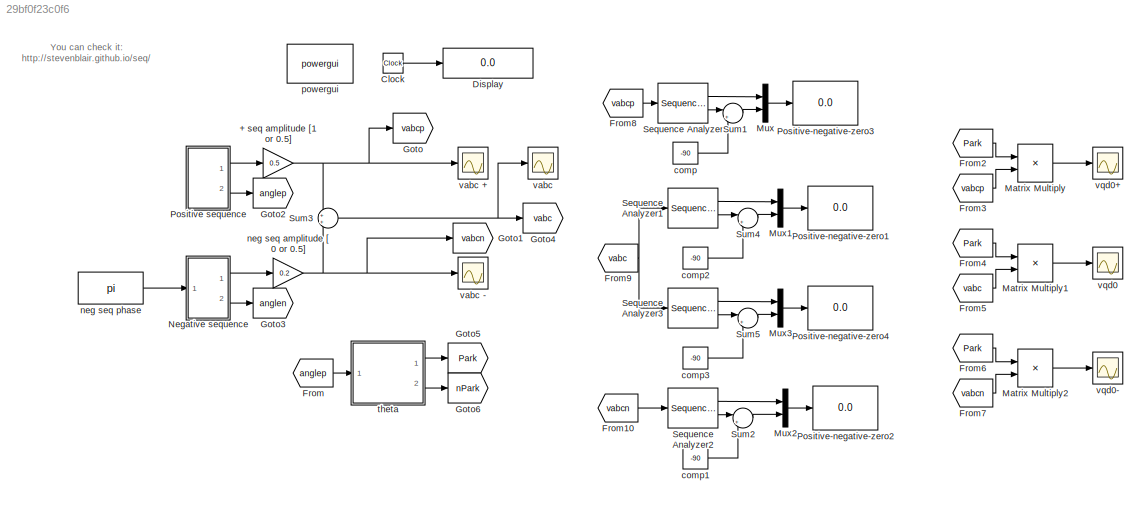
MODEL slx_29bf0f23c0f6
KIND model
CONFIG AbsTol = auto
CONFIG EnableMultiTasking = on
CONFIG FixedStep = auto
CONFIG MaxStep = 1e-4
CONFIG MinStep = auto
CONFIG RelTol = 1e-4
CONFIG SampleTimeConstraint = Unconstrained
CONFIG SolverName = ode45
CONFIG StartTime = 0.0
CONFIG StopTime = 100
BLOCK [Gain] + seq amplitude [1 or 0.5]
  Gain = 0.5
  NameLocation = top
BLOCK [Clock] Clock
BLOCK [Display] Display
  Decimation = 1
  Ports = [1]
BLOCK [From] From
  GotoTag = anglep
BLOCK [From] From10
  GotoTag = vabcn
BLOCK [From] From2
  GotoTag = Park
BLOCK [From] From3
  GotoTag = vabcp
BLOCK [From] From4
  GotoTag = Park
BLOCK [From] From5
  GotoTag = vabc
BLOCK [From] From6
  GotoTag = Park
BLOCK [From] From7
  GotoTag = vabcn
BLOCK [From] From8
  GotoTag = vabcp
BLOCK [From] From9
  GotoTag = vabc
BLOCK [Goto] Goto
  GotoTag = vabcp
BLOCK [Goto] Goto1
  GotoTag = vabcn
BLOCK [Goto] Goto2
  GotoTag = anglep
BLOCK [Goto] Goto3
  GotoTag = anglen
BLOCK [Goto] Goto4
  GotoTag = vabc
BLOCK [Goto] Goto5
  GotoTag = Park
BLOCK [Goto] Goto6
  GotoTag = nPark
BLOCK [Product] Matrix Multiply
  Multiplication = Matrix(*)
  Ports = [2, 1]
BLOCK [Product] Matrix Multiply1
  Multiplication = Matrix(*)
  Ports = [2, 1]
BLOCK [Product] Matrix Multiply2
  Multiplication = Matrix(*)
  Ports = [2, 1]
BLOCK [Mux] Mux
  DisplayOption = bar
  Inputs = 2
  Ports = [2, 1]
BLOCK [Mux] Mux1
  DisplayOption = bar
  Inputs = 2
  Ports = [2, 1]
BLOCK [Mux] Mux2
  DisplayOption = bar
  Inputs = 2
  Ports = [2, 1]
BLOCK [Mux] Mux3
  DisplayOption = bar
  Inputs = 2
  Ports = [2, 1]
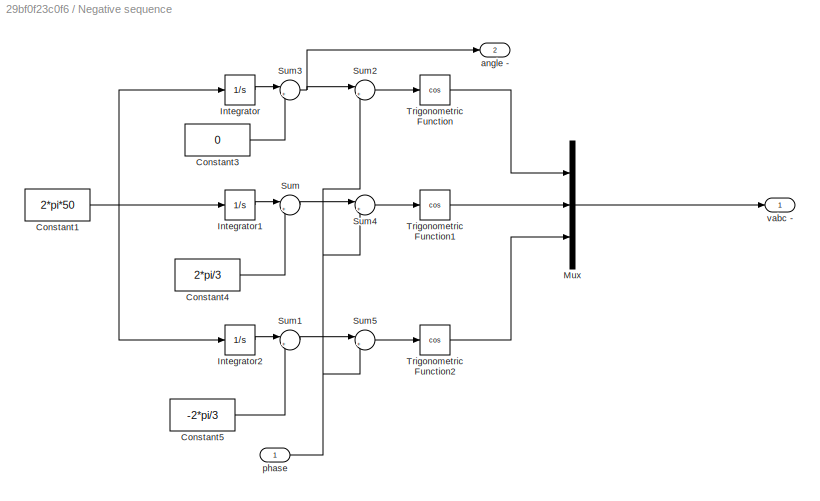
BLOCK [SubSystem] Negative sequence
  Ports = [1, 2]
  RequestExecContextInheritance = off
BLOCK [Constant] Negative sequence/Constant1
  Value = 2*pi*50
BLOCK [Constant] Negative sequence/Constant3
  Value = 0
BLOCK [Constant] Negative sequence/Constant4
  Value = 2*pi/3
BLOCK [Constant] Negative sequence/Constant5
  Value = -2*pi/3
BLOCK [Integrator] Negative sequence/Integrator
  Ports = [1, 1]
BLOCK [Integrator] Negative sequence/Integrator1
  Ports = [1, 1]
BLOCK [Integrator] Negative sequence/Integrator2
  Ports = [1, 1]
BLOCK [Mux] Negative sequence/Mux
  DisplayOption = bar
  Inputs = 3
  Ports = [3, 1]
BLOCK [Sum] Negative sequence/Sum
  Inputs = |++
  Ports = [2, 1]
BLOCK [Sum] Negative sequence/Sum1
  Inputs = |++
  Ports = [2, 1]
BLOCK [Sum] Negative sequence/Sum2
  Inputs = |++
  Ports = [2, 1]
BLOCK [Sum] Negative sequence/Sum3
  Inputs = |++
  Ports = [2, 1]
BLOCK [Sum] Negative sequence/Sum4
  Inputs = |++
  Ports = [2, 1]
BLOCK [Sum] Negative sequence/Sum5
  Inputs = |++
  Ports = [2, 1]
BLOCK [Trigonometry] Negative sequence/Trigonometric Function
  Operator = cos
  Ports = [1, 1]
BLOCK [Trigonometry] Negative sequence/Trigonometric Function1
  Operator = cos
  Ports = [1, 1]
BLOCK [Trigonometry] Negative sequence/Trigonometric Function2
  Operator = cos
  Ports = [1, 1]
BLOCK [Outport] Negative sequence/angle -
  Port = 2
BLOCK [Inport] Negative sequence/phase
BLOCK [Outport] Negative sequence/vabc -
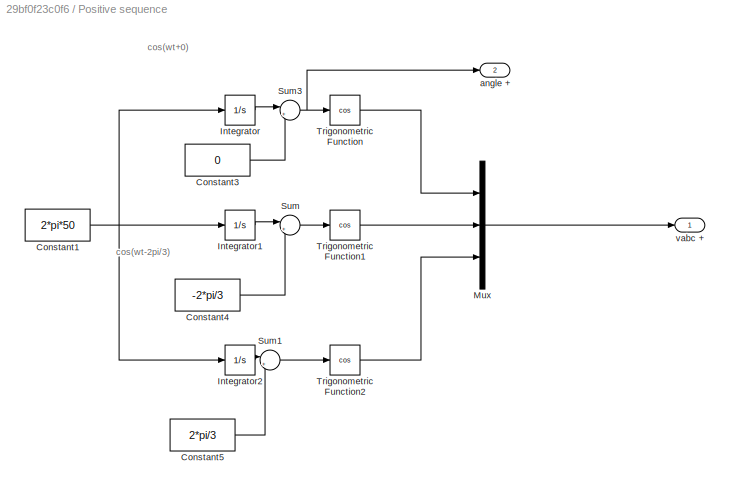
BLOCK [SubSystem] Positive sequence
  Ports = [0, 2]
  RequestExecContextInheritance = off
BLOCK [Constant] Positive sequence/Constant1
  Value = 2*pi*50
BLOCK [Constant] Positive sequence/Constant3
  Value = 0
BLOCK [Constant] Positive sequence/Constant4
  Value = -2*pi/3
BLOCK [Constant] Positive sequence/Constant5
  Value = 2*pi/3
BLOCK [Integrator] Positive sequence/Integrator
  Ports = [1, 1]
BLOCK [Integrator] Positive sequence/Integrator1
  Ports = [1, 1]
BLOCK [Integrator] Positive sequence/Integrator2
  Ports = [1, 1]
BLOCK [Mux] Positive sequence/Mux
  DisplayOption = bar
  Inputs = 3
  Ports = [3, 1]
BLOCK [Sum] Positive sequence/Sum
  Inputs = |++
  Ports = [2, 1]
BLOCK [Sum] Positive sequence/Sum1
  Inputs = |++
  Ports = [2, 1]
BLOCK [Sum] Positive sequence/Sum3
  Inputs = |++
  Ports = [2, 1]
BLOCK [Trigonometry] Positive sequence/Trigonometric Function
  Operator = cos
  Ports = [1, 1]
BLOCK [Trigonometry] Positive sequence/Trigonometric Function1
  Operator = cos
  Ports = [1, 1]
BLOCK [Trigonometry] Positive sequence/Trigonometric Function2
  Operator = cos
  Ports = [1, 1]
BLOCK [Outport] Positive sequence/angle +
  Port = 2
BLOCK [Outport] Positive sequence/vabc +
BLOCK [Display] Positive-negative-zero1
  Decimation = 1
  Ports = [1]
BLOCK [Display] Positive-negative-zero2
  Decimation = 1
  Ports = [1]
BLOCK [Display] Positive-negative-zero3
  Decimation = 1
  Ports = [1]
BLOCK [Display] Positive-negative-zero4
  Decimation = 1
  Ports = [1]
BLOCK [Reference] Sequence Analyzer  REF=powerlib_meascontrol/Measurements/Sequence Analyzer
  Ports = [1, 2]
  SourceBlock = powerlib_meascontrol/Measurements/Sequence Analyzer
  SourceProductBaseCode = PS
  SourceType = Sequence Analyzer
BLOCK [Reference] Sequence Analyzer1  REF=powerlib_meascontrol/Measurements/Sequence Analyzer
  Ports = [1, 2]
  SourceBlock = powerlib_meascontrol/Measurements/Sequence Analyzer
  SourceProductBaseCode = PS
  SourceType = Sequence Analyzer
BLOCK [Reference] Sequence Analyzer2  REF=powerlib_meascontrol/Measurements/Sequence Analyzer
  Ports = [1, 2]
  SourceBlock = powerlib_meascontrol/Measurements/Sequence Analyzer
  SourceProductBaseCode = PS
  SourceType = Sequence Analyzer
BLOCK [Reference] Sequence Analyzer3  REF=powerlib_meascontrol/Measurements/Sequence Analyzer
  Ports = [1, 2]
  SourceBlock = powerlib_meascontrol/Measurements/Sequence Analyzer
  SourceProductBaseCode = PS
  SourceType = Sequence Analyzer
BLOCK [Sum] Sum1
  Inputs = |++
  Ports = [2, 1]
BLOCK [Sum] Sum2
  Inputs = |++
  Ports = [2, 1]
BLOCK [Sum] Sum3
  Ports = [2, 1]
BLOCK [Sum] Sum4
  Inputs = |++
  Ports = [2, 1]
BLOCK [Sum] Sum5
  Inputs = |++
  Ports = [2, 1]
BLOCK [Constant] comp
  Value = -90
BLOCK [Constant] comp1
  Value = -90
BLOCK [Constant] comp2
  Value = -90
BLOCK [Constant] comp3
  Value = -90
BLOCK [Gain] neg seq amplitude [ 0 or 0.5]
  Gain = 0.2
  NameLocation = top
BLOCK [Constant] neg seq phase
  Value = pi
BLOCK [Reference] powergui  REF=powerlib/powergui
  Ports = []
  Priority = 1
  SourceBlock = powerlib/powergui
  SourceProductBaseCode = PS
  SourceType = PSB option menu block
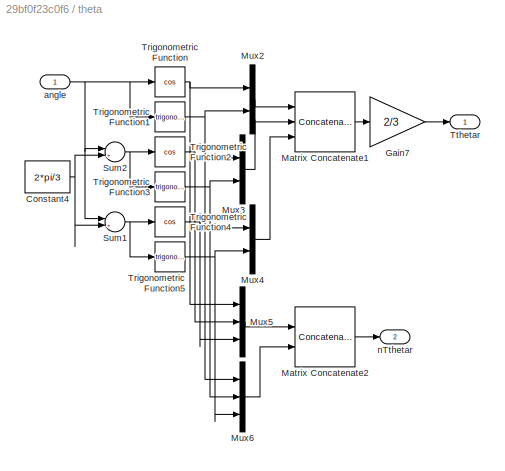
BLOCK [SubSystem] theta
  Ports = [1, 2]
  RequestExecContextInheritance = off
BLOCK [Constant] theta/Constant4
  SampleTime = 0
  Value = 2*pi/3
BLOCK [Gain] theta/Gain7
  Gain = 2/3
BLOCK [Concatenate] theta/Matrix Concatenate1
  ConcatenateDimension = 2
  Mode = Multidimensional array
  NumInputs = 3
  Ports = [3, 1]
BLOCK [Concatenate] theta/Matrix Concatenate2
  ConcatenateDimension = 2
  Mode = Multidimensional array
  Ports = [2, 1]
BLOCK [Mux] theta/Mux2
  DisplayOption = bar
  Inputs = 2
  Ports = [2, 1]
BLOCK [Mux] theta/Mux3
  DisplayOption = bar
  Inputs = 2
  Ports = [2, 1]
BLOCK [Mux] theta/Mux4
  DisplayOption = bar
  Inputs = 2
  Ports = [2, 1]
BLOCK [Mux] theta/Mux5
  DisplayOption = bar
  Inputs = 3
  Ports = [3, 1]
BLOCK [Mux] theta/Mux6
  DisplayOption = bar
  Inputs = 3
  Ports = [3, 1]
BLOCK [Sum] theta/Sum1
  Inputs = |++
  Ports = [2, 1]
BLOCK [Sum] theta/Sum2
  Inputs = |+-
  Ports = [2, 1]
BLOCK [Trigonometry] theta/Trigonometric Function
  Operator = cos
  Ports = [1, 1]
BLOCK [Trigonometry] theta/Trigonometric Function1
  Ports = [1, 1]
BLOCK [Trigonometry] theta/Trigonometric Function2
  Operator = cos
  Ports = [1, 1]
BLOCK [Trigonometry] theta/Trigonometric Function3
  Ports = [1, 1]
BLOCK [Trigonometry] theta/Trigonometric Function4
  Operator = cos
  Ports = [1, 1]
BLOCK [Trigonometry] theta/Trigonometric Function5
  Ports = [1, 1]
BLOCK [Outport] theta/Tthetar
BLOCK [Inport] theta/angle
BLOCK [Outport] theta/nTthetar
  Port = 2
BLOCK [Scope] vabc
  Floating = off
  NumInputPorts = 1
  Ports = [1]
  ScopeSpecificationString = Simulink.scopes.TimeScopeBlockCfg('CurrentConfiguration', extmgr.ConfigurationSet(extmgr.Configuration('Core','General UI',true),extmgr.Configuration('Core','Source UI',true),extmgr.Configuration('Sources','WiredSimulink',true,'DataLoggingSaveFormat','StructureWithTime','DataLoggingDecimation','1','DataLoggingDecimateData',true,'DataLoggingVariableName','ScopeData1'),extmgr.Configuration('Visuals'...<+1714ch>
BLOCK [Scope] vabc +
  Floating = off
  NumInputPorts = 1
  Ports = [1]
  ScopeSpecificationString = Simulink.scopes.TimeScopeBlockCfg('CurrentConfiguration', extmgr.ConfigurationSet(extmgr.Configuration('Core','General UI',true),extmgr.Configuration('Core','Source UI',true),extmgr.Configuration('Sources','WiredSimulink',true,'DataLoggingSaveFormat','StructureWithTime','DataLoggingDecimation','1','DataLoggingDecimateData',true),extmgr.Configuration('Visuals','Time Domain',true,'SerializedDisplays...<+1741ch>
BLOCK [Scope] vabc -
  Floating = off
  NumInputPorts = 1
  Ports = [1]
  ScopeSpecificationString = Simulink.scopes.TimeScopeBlockCfg('CurrentConfiguration', extmgr.ConfigurationSet(extmgr.Configuration('Core','General UI',true),extmgr.Configuration('Core','Source UI',true),extmgr.Configuration('Sources','WiredSimulink',true,'DataLoggingSaveFormat','StructureWithTime','DataLoggingDecimation','1','DataLoggingDecimateData',true,'DataLoggingVariableName','ScopeData2'),extmgr.Configuration('Visuals'...<+1808ch>
BLOCK [Scope] vqd0
  Floating = off
  NumInputPorts = 1
  Ports = [1]
  ScopeSpecificationString = Simulink.scopes.TimeScopeBlockCfg('CurrentConfiguration', extmgr.ConfigurationSet(extmgr.Configuration('Core','General UI',true),extmgr.Configuration('Core','Source UI',true),extmgr.Configuration('Sources','WiredSimulink',true,'DataLoggingSaveFormat','StructureWithTime','DataLoggingDecimation','1','DataLoggingDecimateData',true,'DataLoggingVariableName','ScopeData5'),extmgr.Configuration('Visuals'...<+2107ch>
BLOCK [Scope] vqd0+
  Floating = off
  NumInputPorts = 1
  Ports = [1]
  ScopeSpecificationString = Simulink.scopes.TimeScopeBlockCfg('CurrentConfiguration', extmgr.ConfigurationSet(extmgr.Configuration('Core','General UI',true),extmgr.Configuration('Core','Source UI',true),extmgr.Configuration('Sources','WiredSimulink',true,'DataLoggingSaveFormat','StructureWithTime','DataLoggingDecimation','1','DataLoggingDecimateData',true,'DataLoggingVariableName','ScopeData4'),extmgr.Configuration('Visuals'...<+1656ch>
BLOCK [Scope] vqd0-
  Floating = off
  NumInputPorts = 1
  Ports = [1]
  ScopeSpecificationString = Simulink.scopes.TimeScopeBlockCfg('CurrentConfiguration', extmgr.ConfigurationSet(extmgr.Configuration('Core','General UI',true),extmgr.Configuration('Core','Source UI',true),extmgr.Configuration('Sources','WiredSimulink',true,'DataLoggingSaveFormat','StructureWithTime','DataLoggingDecimation','1','DataLoggingDecimateData',true,'DataLoggingVariableName','ScopeData6'),extmgr.Configuration('Visuals'...<+1747ch>
ANNOTATION (root): You can check it: http://stevenblair.github.io/seq/
ANNOTATION Positive sequence: cos(wt+0)
ANNOTATION Positive sequence: cos(wt-2pi/3)
NET + seq amplitude [1 or 0.5]:1 -> Goto:1, Sum3:1, vabc +:1
LINE Clock:1 -> Display:1
LINE From10:1 -> Sequence Analyzer2:1
LINE From2:1 -> Matrix Multiply:1
LINE From3:1 -> Matrix Multiply:2
LINE From4:1 -> Matrix Multiply1:1
LINE From5:1 -> Matrix Multiply1:2
LINE From6:1 -> Matrix Multiply2:1
LINE From7:1 -> Matrix Multiply2:2
LINE From8:1 -> Sequence Analyzer:1
NET From9:1 -> Sequence Analyzer1:1, Sequence Analyzer3:1
LINE From:1 -> theta:1
LINE Matrix Multiply1:1 -> vqd0:1
LINE Matrix Multiply2:1 -> vqd0-:1
LINE Matrix Multiply:1 -> vqd0+:1
LINE Mux1:1 -> Positive-negative-zero1:1
LINE Mux2:1 -> Positive-negative-zero2:1
LINE Mux3:1 -> Positive-negative-zero4:1
LINE Mux:1 -> Positive-negative-zero3:1
NET Negative sequence/Constant1:1 -> Negative sequence/Integrator1:1, Negative sequence/Integrator2:1, Negative sequence/Integrator:1
LINE Negative sequence/Constant3:1 -> Negative sequence/Sum3:2
LINE Negative sequence/Constant4:1 -> Negative sequence/Sum:2
LINE Negative sequence/Constant5:1 -> Negative sequence/Sum1:2
LINE Negative sequence/Integrator1:1 -> Negative sequence/Sum:1
LINE Negative sequence/Integrator2:1 -> Negative sequence/Sum1:1
LINE Negative sequence/Integrator:1 -> Negative sequence/Sum3:1
LINE Negative sequence/Mux:1 -> Negative sequence/vabc -:1
LINE Negative sequence/Sum1:1 -> Negative sequence/Sum5:1
LINE Negative sequence/Sum2:1 -> Negative sequence/Trigonometric Function:1
NET Negative sequence/Sum3:1 -> Negative sequence/Sum2:1, Negative sequence/angle -:1
LINE Negative sequence/Sum4:1 -> Negative sequence/Trigonometric Function1:1
LINE Negative sequence/Sum5:1 -> Negative sequence/Trigonometric Function2:1
LINE Negative sequence/Sum:1 -> Negative sequence/Sum4:1
LINE Negative sequence/Trigonometric Function1:1 -> Negative sequence/Mux:2
LINE Negative sequence/Trigonometric Function2:1 -> Negative sequence/Mux:3
LINE Negative sequence/Trigonometric Function:1 -> Negative sequence/Mux:1
NET Negative sequence/phase:1 -> Negative sequence/Sum2:2, Negative sequence/Sum4:2, Negative sequence/Sum5:2
LINE Negative sequence:1 -> neg seq amplitude [ 0 or 0.5]:1
LINE Negative sequence:2 -> Goto3:1
NET Positive sequence/Constant1:1 -> Positive sequence/Integrator1:1, Positive sequence/Integrator2:1, Positive sequence/Integrator:1
LINE Positive sequence/Constant3:1 -> Positive sequence/Sum3:2
LINE Positive sequence/Constant4:1 -> Positive sequence/Sum:2
LINE Positive sequence/Constant5:1 -> Positive sequence/Sum1:2
LINE Positive sequence/Integrator1:1 -> Positive sequence/Sum:1
LINE Positive sequence/Integrator2:1 -> Positive sequence/Sum1:1
LINE Positive sequence/Integrator:1 -> Positive sequence/Sum3:1
LINE Positive sequence/Mux:1 -> Positive sequence/vabc +:1
LINE Positive sequence/Sum1:1 -> Positive sequence/Trigonometric Function2:1
NET Positive sequence/Sum3:1 -> Positive sequence/Trigonometric Function:1, Positive sequence/angle +:1
LINE Positive sequence/Sum:1 -> Positive sequence/Trigonometric Function1:1
LINE Positive sequence/Trigonometric Function1:1 -> Positive sequence/Mux:2
LINE Positive sequence/Trigonometric Function2:1 -> Positive sequence/Mux:3
LINE Positive sequence/Trigonometric Function:1 -> Positive sequence/Mux:1
LINE Positive sequence:1 -> + seq amplitude [1 or 0.5]:1
LINE Positive sequence:2 -> Goto2:1
LINE Sequence Analyzer1:1 -> Mux1:1
LINE Sequence Analyzer1:2 -> Sum4:1
LINE Sequence Analyzer2:1 -> Mux2:1
LINE Sequence Analyzer2:2 -> Sum2:1
LINE Sequence Analyzer3:1 -> Mux3:1
LINE Sequence Analyzer3:2 -> Sum5:1
LINE Sequence Analyzer:1 -> Mux:1
LINE Sequence Analyzer:2 -> Sum1:1
LINE Sum1:1 -> Mux:2
LINE Sum2:1 -> Mux2:2
NET Sum3:1 -> Goto4:1, vabc:1
LINE Sum4:1 -> Mux1:2
LINE Sum5:1 -> Mux3:2
LINE comp1:1 -> Sum2:2
LINE comp2:1 -> Sum4:2
LINE comp3:1 -> Sum5:2
LINE comp:1 -> Sum1:2
NET neg seq amplitude [ 0 or 0.5]:1 -> Goto1:1, Sum3:2, vabc -:1
LINE neg seq phase:1 -> Negative sequence:1
NET theta/Constant4:1 -> theta/Sum1:2, theta/Sum2:2
LINE theta/Gain7:1 -> theta/Tthetar:1
LINE theta/Matrix Concatenate1:1 -> theta/Gain7:1
LINE theta/Matrix Concatenate2:1 -> theta/nTthetar:1
LINE theta/Mux2:1 -> theta/Matrix Concatenate1:1
LINE theta/Mux3:1 -> theta/Matrix Concatenate1:2
LINE theta/Mux4:1 -> theta/Matrix Concatenate1:3
LINE theta/Mux5:1 -> theta/Matrix Concatenate2:1
LINE theta/Mux6:1 -> theta/Matrix Concatenate2:2
NET theta/Sum1:1 -> theta/Trigonometric Function4:1, theta/Trigonometric Function5:1
NET theta/Sum2:1 -> theta/Trigonometric Function2:1, theta/Trigonometric Function3:1
NET theta/Trigonometric Function1:1 -> theta/Mux2:2, theta/Mux6:1
NET theta/Trigonometric Function2:1 -> theta/Mux3:1, theta/Mux5:2
NET theta/Trigonometric Function3:1 -> theta/Mux3:2, theta/Mux6:2
NET theta/Trigonometric Function4:1 -> theta/Mux4:1, theta/Mux5:3
NET theta/Trigonometric Function5:1 -> theta/Mux4:2, theta/Mux6:3
NET theta/Trigonometric Function:1 -> theta/Mux2:1, theta/Mux5:1
NET theta/angle:1 -> theta/Sum1:1, theta/Sum2:1, theta/Trigonometric Function1:1, theta/Trigonometric Function:1
LINE theta:1 -> Goto5:1
LINE theta:2 -> Goto6:1
note: NET lines group one-source signal fan-out (src -> all destinations, sorted); 1:1 wires keep LINE
